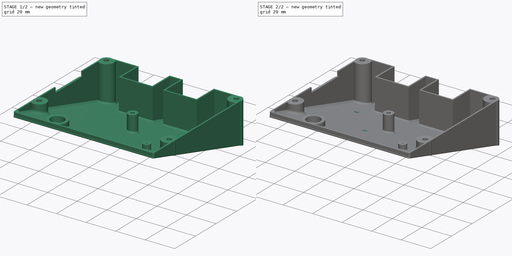
[diagram: build sequence overview — one tinted view per stage of 2, left to right]
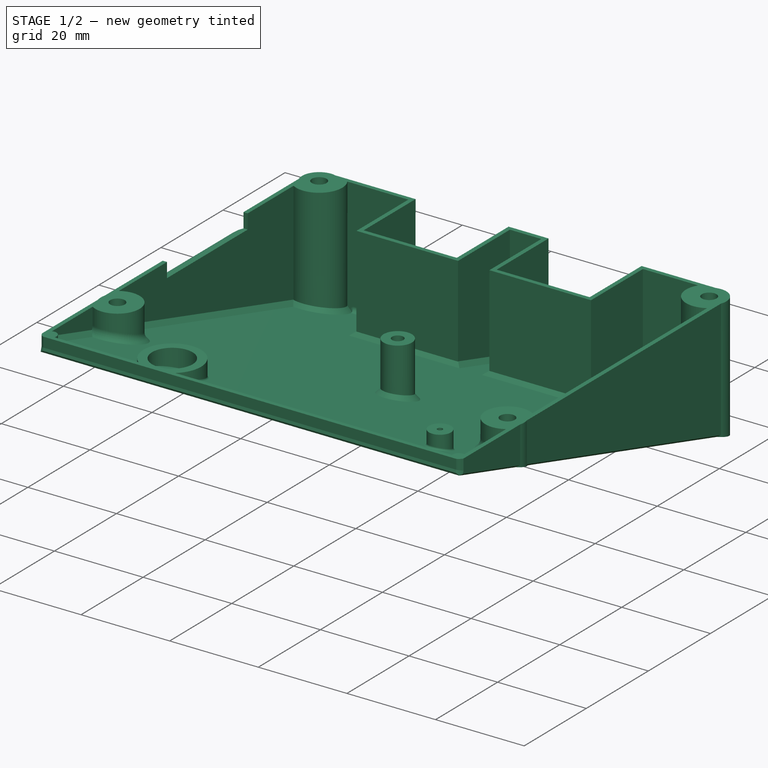
[diagram: stage 1 of 2 — iso view after this stage's code; geometry added in this stage tinted green]
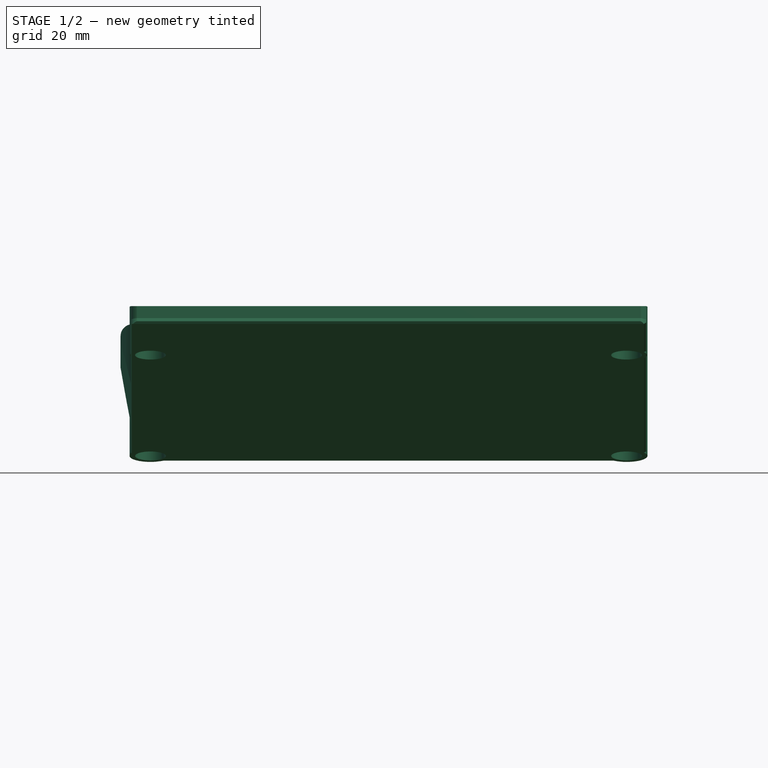
[diagram: stage 1 of 2 — front view after this stage's code; geometry added in this stage tinted green]
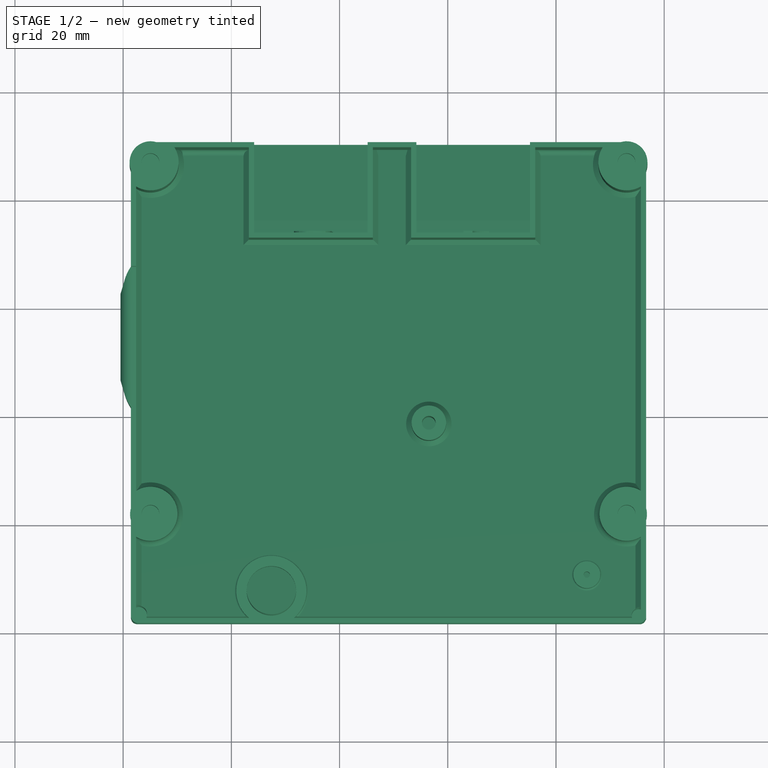
[diagram: stage 1 of 2 — top view after this stage's code; geometry added in this stage tinted green]
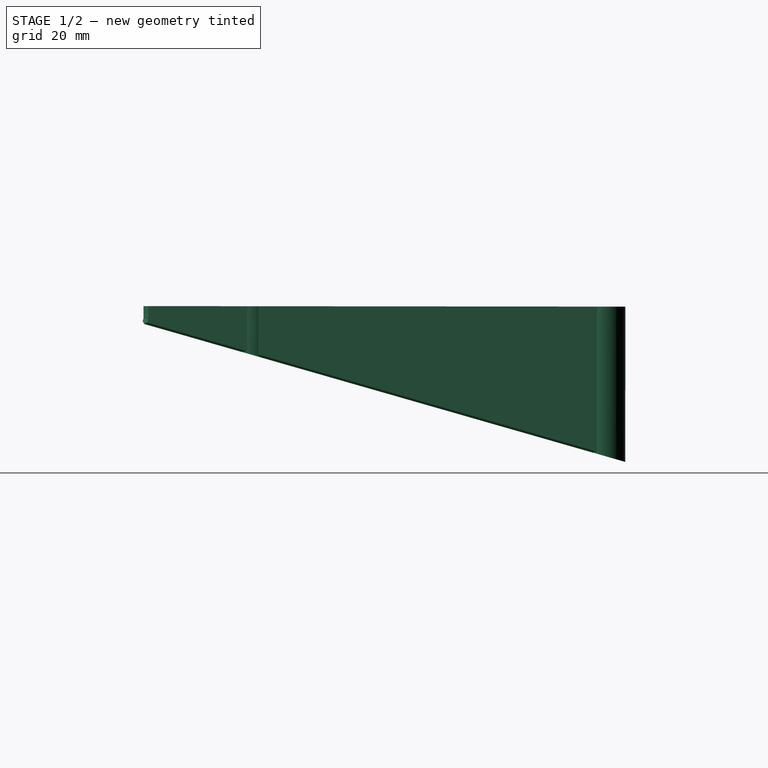
[diagram: stage 1 of 2 — right view after this stage's code; geometry added in this stage tinted green]
FCSTD DOCUMENT  (FreeCAD 0.18R4 (GitTag))
Label: _Electr_Display_Case
License: CreativeCommons Attribution
LicenseURL: http://creativecommons.org/licenses/by/4.0/
objects: Part::Feature×6, App::Part×1, PartDesign::FeatureBase×1, Sketcher::SketchObject×1, PartDesign::Pocket×1, PartDesign::Body×1, Spreadsheet::Sheet×1
note: 11 computed .brp shape members not serialized (recipe doc carries the construction recipe); baked Part::Feature solids carry a one-line shape summary decoded from their .brp

FEATURE [Part::Feature] Body001  label="profile_5_40x20-313_001"
  Placement = pos=(114,-70,-20) rot=(0.57735,0.57735,0.57735;4.18879rad)
  shape: bbox 20 x 313 x 40 mm, 120 faces (baked)
FEATURE [Part::Feature] Body002  label="Display_Case_Holder"
  Placement = pos=(104,50,0) rot=(0,0,1;0rad)
  shape: bbox 96.6 x 50 x 40 mm, 57 faces (baked)
FEATURE [Part::Feature] Top_Shell001001_solid  label="Top_Shell"
  shape: large baked B-rep (31 MB .brp); summary skipped
FEATURE [Part::Feature] Bottom_Shell001001_solid  label="Bottom_Shell_Orig"
  shape: bbox 97.39 x 89.23 x 28.8 mm, 14223 faces (baked)
FEATURE [Part::Feature] Reset_Knob_1mm_default001001_solid  label="Reset_Knob_1mm_default"
  Placement = pos=(52.7,10.4,6.8) rot=(0,0,1;0rad)
  shape: bbox 13 x 13 x 9 mm, 6847 faces (baked)
FEATURE [Part::Feature] Display_Support_Frame001001_solid  label="Display_Support_Frame"
  Placement = pos=(2.4,2.4,1.9) rot=(0,0,1;0rad)
  shape: bbox 93.3 x 70.5 x 3.1 mm, 276 faces (baked)
FEATURE [App::Part] Part  label="Display-Case"
  Group = -> [Top_Shell001001_solid,Bottom_Shell001001_solid,Reset_Knob_1mm_default001001_solid,Display_Support_Frame001001_solid]
  Origin = -> Origin001
  Placement = pos=(0,4.49289,-15.6686) rot=(1,0,0;0.279253rad)
FEATURE [PartDesign::FeatureBase] Clone
  BaseFeature = -> Bottom_Shell001001_solid
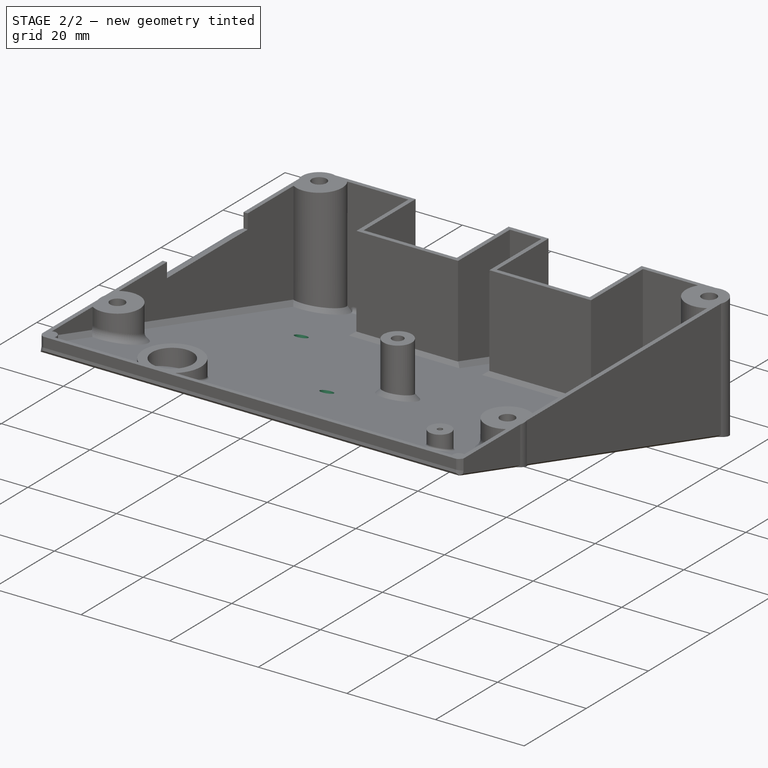
[diagram: stage 2 of 2 — iso view after this stage's code; geometry added in this stage tinted green]
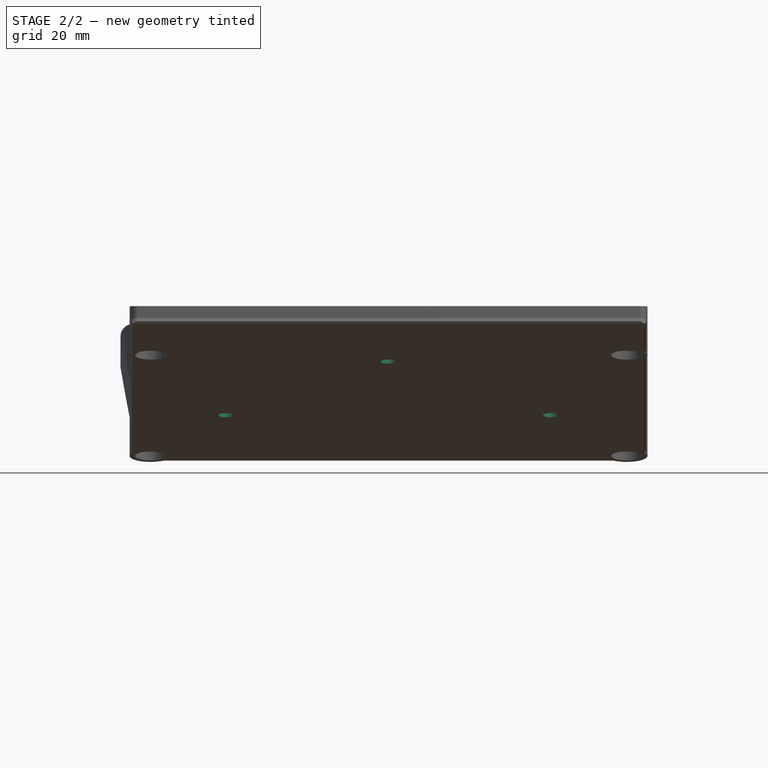
[diagram: stage 2 of 2 — front view after this stage's code; geometry added in this stage tinted green]
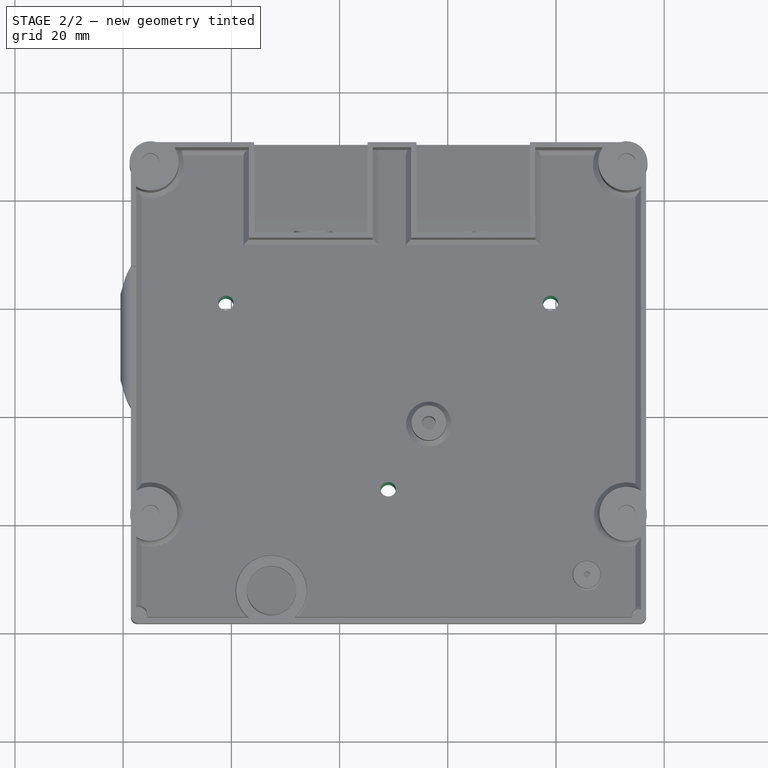
[diagram: stage 2 of 2 — top view after this stage's code; geometry added in this stage tinted green]
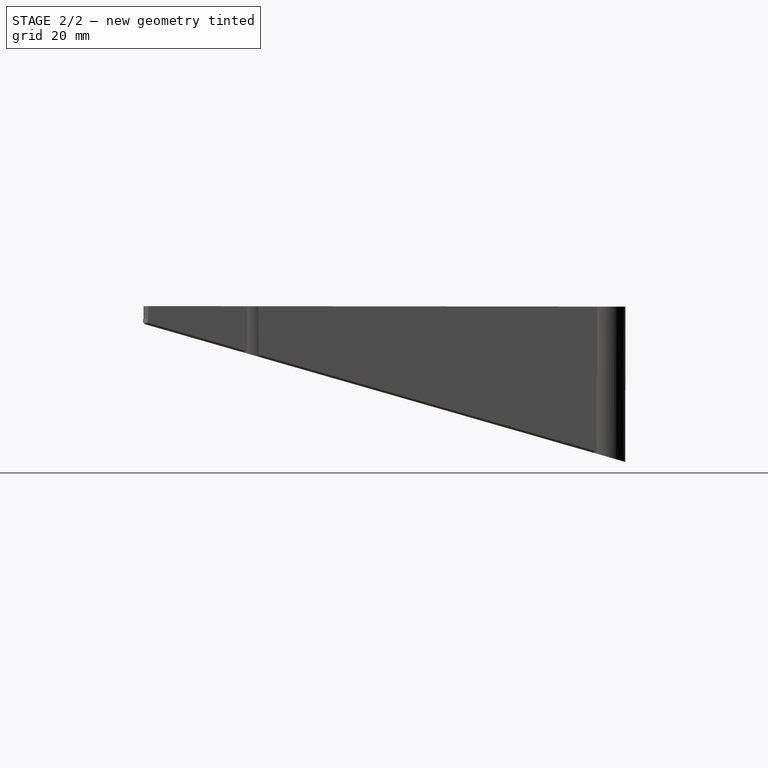
[diagram: stage 2 of 2 — right view after this stage's code; geometry added in this stage tinted green]
FEATURE [Sketcher::SketchObject] Sketch
  MapMode = 5
  Placement = pos=(0,-0.0772532,-0.269414) rot=(-1,0,0;0.279253rad)
  Support = -> [Clone]
  sketch-geometry (8):
    g0: Circle CenterX=19 CenterY=63.5 CenterZ=0 NormalX=0 NormalY=0 NormalZ=1 AngleXU=0 Radius=1.4
    g1: Circle CenterX=79 CenterY=63.5 CenterZ=0 NormalX=0 NormalY=0 NormalZ=1 AngleXU=0 Radius=1.4
    g2: Circle CenterX=49 CenterY=27.5 CenterZ=0 NormalX=0 NormalY=0 NormalZ=1 AngleXU=0 Radius=1.4
    g3: LineSegment [constr] StartX=19 StartY=63.5 StartZ=0 EndX=79 EndY=63.5 EndZ=0
    g4: LineSegment [constr] StartX=79 StartY=63.5 StartZ=0 EndX=79 EndY=27.5 EndZ=0
    g5: LineSegment [constr] StartX=79 StartY=27.5 StartZ=0 EndX=19 EndY=27.5 EndZ=0
    g6: LineSegment [constr] StartX=19 StartY=27.5 StartZ=0 EndX=19 EndY=63.5 EndZ=0
    g7: LineSegment [constr] StartX=49 StartY=63.5 StartZ=0 EndX=49 EndY=27.5 EndZ=0
  constraints (21):
    c: Coincident(g3,g4)
    c: Coincident(g4,g5)
    c: Coincident(g5,g6)
    c: Coincident(g6,g3)
    c: Horizontal(g3)
    c: Horizontal(g5)
    c: Vertical(g4)
    c: Vertical(g6)
    c: PointOnObject(g7,g3)
    c: PointOnObject(g7,g5)
    c: Symmetric(g5,g4,g7)
    c: DistanceY(g6,g6) = 36
    c: DistanceX(g3,g3) = 60
    c: Coincident(g0,g3)
    c: Coincident(g1,g3)
    c: Coincident(g7,g2)
    c: Equal(g0,g1)
    c: Equal(g1,g2)
    c: Diameter(g1) = 2.8
    c: DistanceY(g-1,g5) = 27.5
    c: DistanceX(g-1,g5) = 19
FEATURE [PartDesign::Pocket] Pocket
  BaseFeature = -> Clone
  Length = 5
  Length2 = 100
  Profile = -> Sketch
  Type = 1
FEATURE [PartDesign::Body] Body  label="Bottom_Shell"
  BaseFeature = -> Bottom_Shell001001_solid
  Group = -> [Clone,Sketch,Pocket]
  Origin = -> Origin
  Placement = pos=(0,4.49289,-15.6686) rot=(1,0,0;0.279253rad)
  Tip = -> Pocket
FEATURE [Spreadsheet::Sheet] Spreadsheet  label="thingiverse.com/thing:2813298"
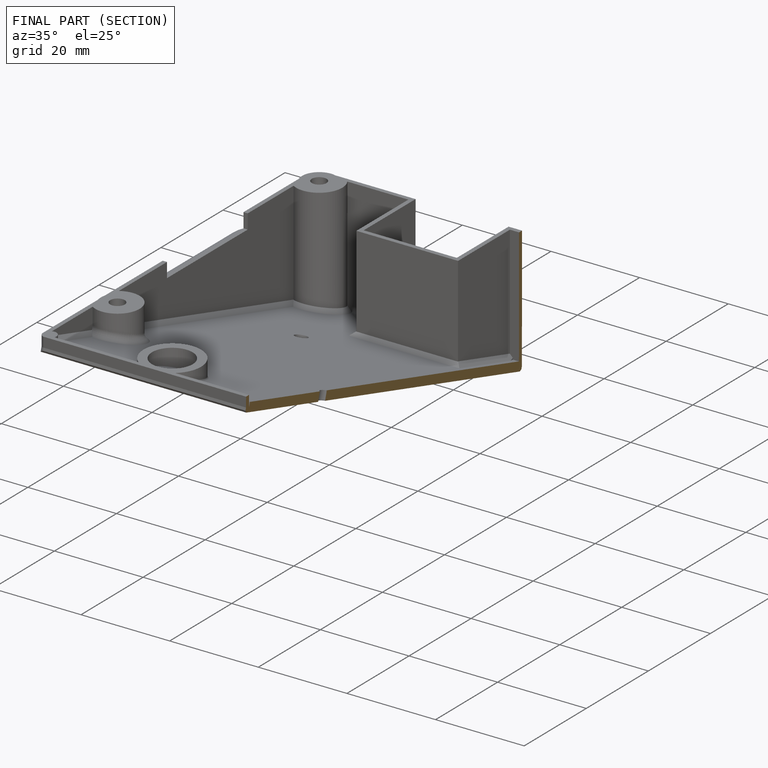
[diagram: finished part — half-section view (interior)]
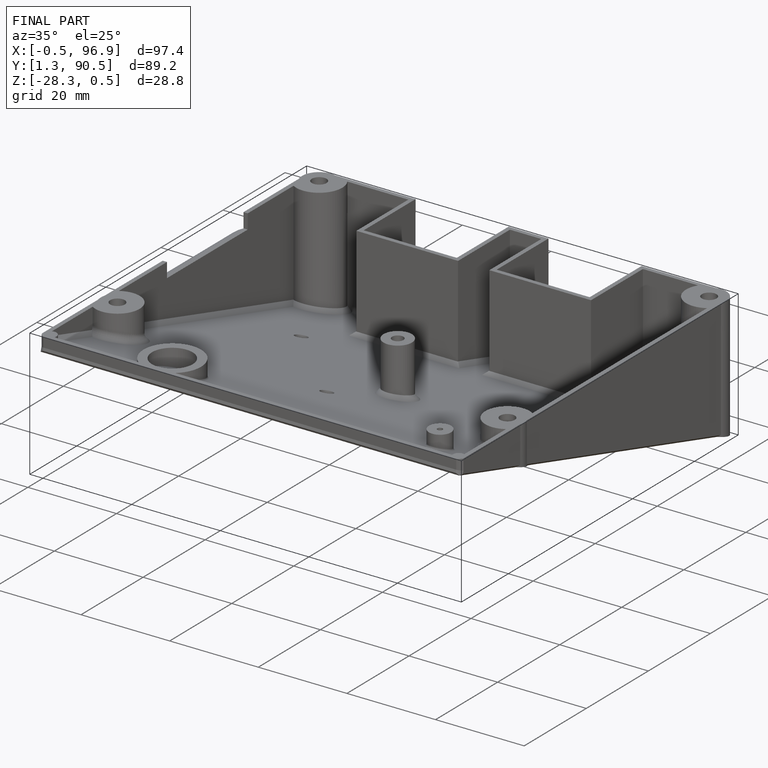
[diagram: finished part — iso view with bounding-box wireframe]
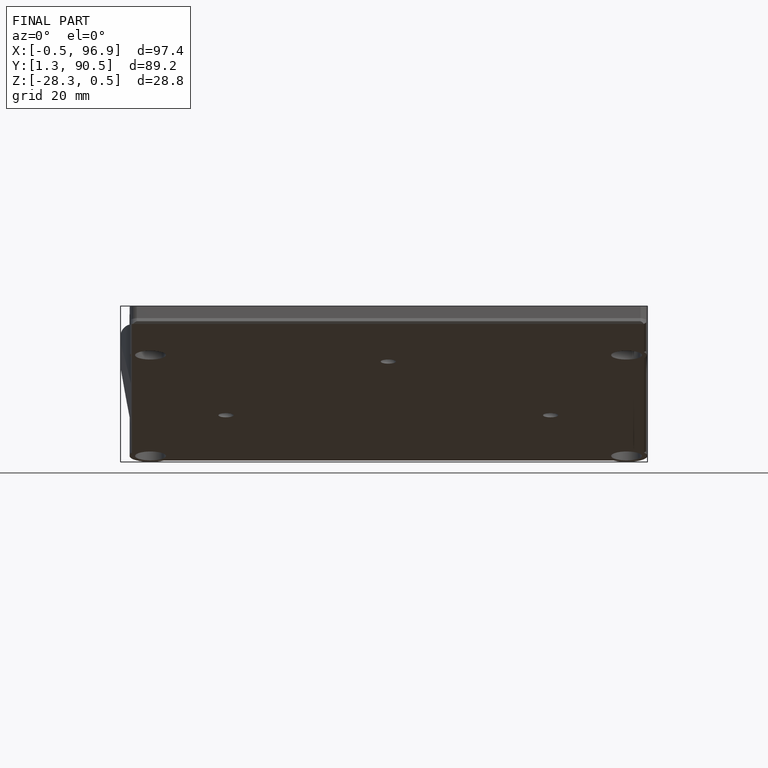
[diagram: finished part — front view with bounding-box wireframe]
